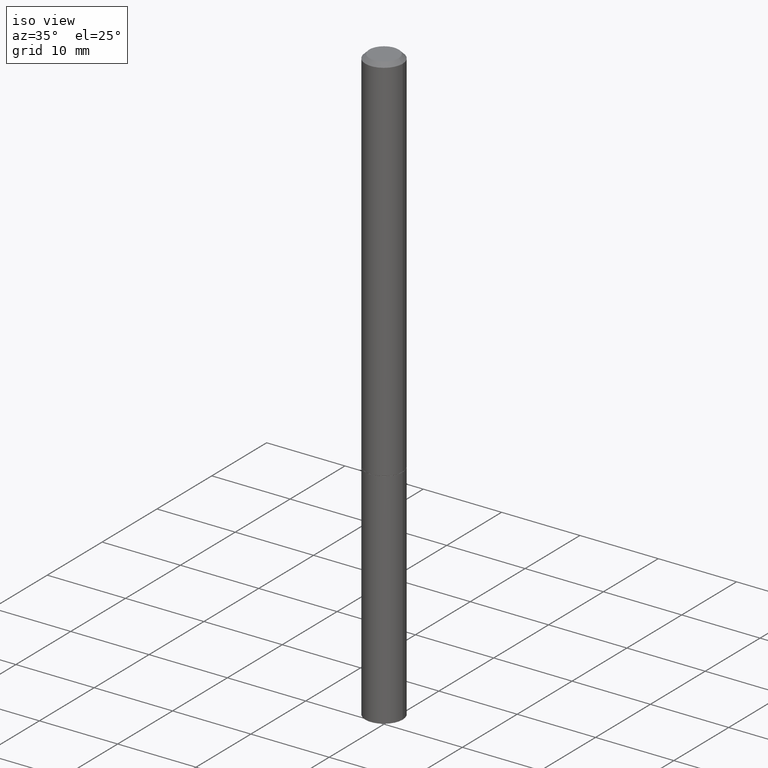
[diagram: clean part render]
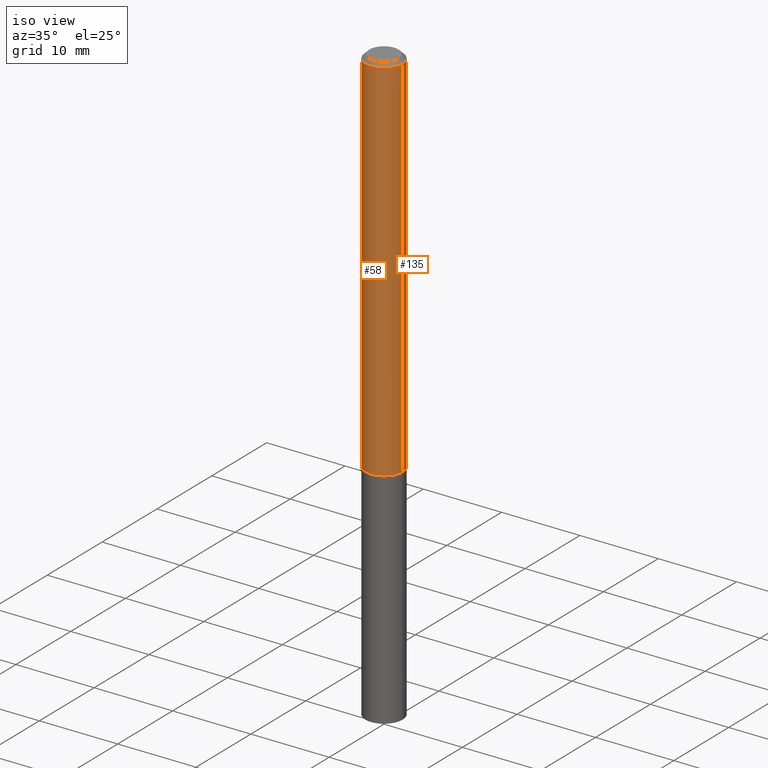
[diagram: same view with one multi-face feature highlighted, each face labeled with its STEP entity id]
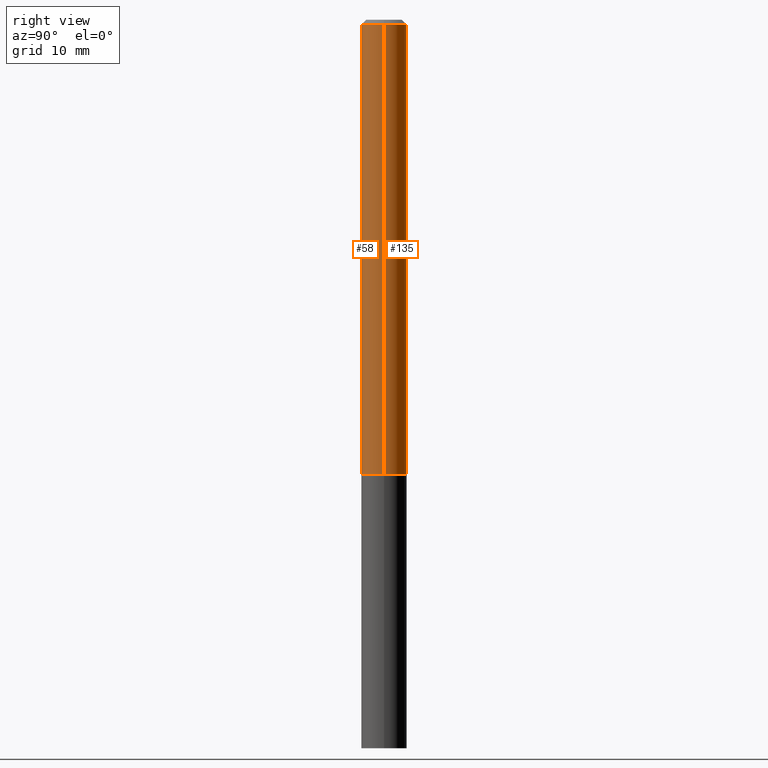
[diagram: same view with one multi-face feature highlighted, each face labeled with its STEP entity id]
A machine part, iso view. The highlighted faces form ONE feature: a constant-radius fillet chain: 2 tangent blend faces with common blend radius 2.3812 mm. The faces share edges in the B-rep.
A second angle (right view) of the same feature is appended — it is thin or edge-on in the first view.
Their STEP definitions:
[1] entity #135 (Cylinder):
#3 = CARTESIAN_POINT ( 'NONE',  ( 0.09374999999999988898, -6.546527510330866166E-16, 4.571415727308684201E-30 ) ) ;
#9 = VECTOR ( 'NONE', #233, 39.37007874015748143 ) ;
#13 = DIRECTION ( 'NONE',  ( 1.000000000000000000, -6.982962677686267499E-15, 0.000000000000000000 ) ) ;
#21 = VERTEX_POINT ( 'NONE', #204 ) ;
#44 = VERTEX_POINT ( 'NONE', #257 ) ;
#49 = CARTESIAN_POINT ( 'NONE',  ( 0.09374999999999976408, -7.130013140679424100E-16, -0.02000000000000001429 ) ) ;
#50 = VERTEX_POINT ( 'NONE', #49 ) ;
#59 = EDGE_LOOP ( 'NONE', ( #161, #101, #297, #284 ) ) ;
#62 = LINE ( 'NONE', #3, #9 ) ;
#66 = DIRECTION ( 'NONE',  ( 1.000000000000000000, -6.982962677686265133E-15, 4.876176775795935793E-29 ) ) ;
#68 = LINE ( 'NONE', #142, #149 ) ;
#71 = CIRCLE ( 'NONE', #323, 0.09374999999999976408 ) ;
#78 = EDGE_CURVE ( 'NONE', #177, #44, #238, .T. ) ;
#96 = CARTESIAN_POINT ( 'NONE',  ( 0.09375000000000001388, -7.197688780025142415E-15, -1.874000000000000110 ) ) ;
#101 = ORIENTED_EDGE ( 'NONE', *, *, #180, .T. ) ;
#128 = AXIS2_PLACEMENT_3D ( 'NONE', #199, #307, #66 ) ;
#135 = ADVANCED_FACE ( 'NONE', ( #144 ), #349, .T. ) ;
#142 = CARTESIAN_POINT ( 'NONE',  ( -0.09374999999999988898, 6.661338147750931354E-16, -4.611501647113968390E-30 ) ) ;
#144 = FACE_OUTER_BOUND ( 'NONE', #59, .T. ) ;
#149 = VECTOR ( 'NONE', #341, 39.37007874015748143 ) ;
#152 = DIRECTION ( 'NONE',  ( -2.445468806185136597E-29, 3.491481338843145583E-15, 1.000000000000000000 ) ) ;
#155 = CARTESIAN_POINT ( 'NONE',  ( 4.890937612370275786E-31, -6.982962677686296539E-17, -0.02000000000000001429 ) ) ;
#161 = ORIENTED_EDGE ( 'NONE', *, *, #78, .T. ) ;
#168 = EDGE_CURVE ( 'NONE', #50, #21, #71, .T. ) ;
#177 = VERTEX_POINT ( 'NONE', #96 ) ;
#180 = EDGE_CURVE ( 'NONE', #44, #21, #68, .T. ) ;
#183 = DIRECTION ( 'NONE',  ( 1.000000000000000000, -6.982962677686261189E-15, 0.000000000000000000 ) ) ;
#199 = CARTESIAN_POINT ( 'NONE',  ( 0.000000000000000000, 0.000000000000000000, 0.000000000000000000 ) ) ;
#204 = CARTESIAN_POINT ( 'NONE',  ( -0.09374999999999976408, 5.848231242562229240E-16, -0.02000000000000001429 ) ) ;
#233 = DIRECTION ( 'NONE',  ( -2.445468806185136877E-29, 3.491481338843145188E-15, 1.000000000000000000 ) ) ;
#238 = CIRCLE ( 'NONE', #318, 0.09375000000000001388 ) ;
#248 = CARTESIAN_POINT ( 'NONE',  ( 4.582808542790945516E-29, -6.543036028992054911E-15, -1.874000000000000110 ) ) ;
#257 = CARTESIAN_POINT ( 'NONE',  ( -0.09375000000000001388, -2.640299013109360447E-15, -1.874000000000000110 ) ) ;
#284 = ORIENTED_EDGE ( 'NONE', *, *, #286, .F. ) ;
#286 = EDGE_CURVE ( 'NONE', #177, #50, #62, .T. ) ;
#297 = ORIENTED_EDGE ( 'NONE', *, *, #168, .F. ) ;
#307 = DIRECTION ( 'NONE',  ( -2.445468806185136597E-29, 3.491481338843145583E-15, 1.000000000000000000 ) ) ;
#318 = AXIS2_PLACEMENT_3D ( 'NONE', #248, #326, #183 ) ;
#323 = AXIS2_PLACEMENT_3D ( 'NONE', #155, #152, #13 ) ;
#326 = DIRECTION ( 'NONE',  ( -2.445468806185136597E-29, 3.491481338843145583E-15, 1.000000000000000000 ) ) ;
#341 = DIRECTION ( 'NONE',  ( -2.445468806185136877E-29, 3.491481338843145188E-15, 1.000000000000000000 ) ) ;
#349 = CYLINDRICAL_SURFACE ( 'NONE', #128, 0.09374999999999988898 ) ;
[2] entity #58 (Cylinder):
#3 = CARTESIAN_POINT ( 'NONE',  ( 0.09374999999999988898, -6.546527510330866166E-16, 4.571415727308684201E-30 ) ) ;
#9 = VECTOR ( 'NONE', #233, 39.37007874015748143 ) ;
#21 = VERTEX_POINT ( 'NONE', #204 ) ;
#41 = CIRCLE ( 'NONE', #276, 0.09375000000000001388 ) ;
#42 = EDGE_CURVE ( 'NONE', #21, #50, #354, .T. ) ;
#44 = VERTEX_POINT ( 'NONE', #257 ) ;
#49 = CARTESIAN_POINT ( 'NONE',  ( 0.09374999999999976408, -7.130013140679424100E-16, -0.02000000000000001429 ) ) ;
#50 = VERTEX_POINT ( 'NONE', #49 ) ;
#58 = ADVANCED_FACE ( 'NONE', ( #225 ), #85, .T. ) ;
#62 = LINE ( 'NONE', #3, #9 ) ;
#68 = LINE ( 'NONE', #142, #149 ) ;
#85 = CYLINDRICAL_SURFACE ( 'NONE', #146, 0.09374999999999988898 ) ;
#89 = DIRECTION ( 'NONE',  ( -2.445468806185136597E-29, 3.491481338843145583E-15, 1.000000000000000000 ) ) ;
#93 = DIRECTION ( 'NONE',  ( 1.000000000000000000, -6.982962677686261189E-15, 0.000000000000000000 ) ) ;
#96 = CARTESIAN_POINT ( 'NONE',  ( 0.09375000000000001388, -7.197688780025142415E-15, -1.874000000000000110 ) ) ;
#133 = DIRECTION ( 'NONE',  ( -2.445468806185136597E-29, 3.491481338843145583E-15, 1.000000000000000000 ) ) ;
#142 = CARTESIAN_POINT ( 'NONE',  ( -0.09374999999999988898, 6.661338147750931354E-16, -4.611501647113968390E-30 ) ) ;
#146 = AXIS2_PLACEMENT_3D ( 'NONE', #296, #157, #278 ) ;
#149 = VECTOR ( 'NONE', #341, 39.37007874015748143 ) ;
#157 = DIRECTION ( 'NONE',  ( -2.445468806185136597E-29, 3.491481338843145583E-15, 1.000000000000000000 ) ) ;
#159 = ORIENTED_EDGE ( 'NONE', *, *, #335, .T. ) ;
#177 = VERTEX_POINT ( 'NONE', #96 ) ;
#180 = EDGE_CURVE ( 'NONE', #44, #21, #68, .T. ) ;
#182 = ORIENTED_EDGE ( 'NONE', *, *, #286, .T. ) ;
#204 = CARTESIAN_POINT ( 'NONE',  ( -0.09374999999999976408, 5.848231242562229240E-16, -0.02000000000000001429 ) ) ;
#222 = CARTESIAN_POINT ( 'NONE',  ( 4.890937612370275786E-31, -6.982962677686296539E-17, -0.02000000000000001429 ) ) ;
#225 = FACE_OUTER_BOUND ( 'NONE', #320, .T. ) ;
#233 = DIRECTION ( 'NONE',  ( -2.445468806185136877E-29, 3.491481338843145188E-15, 1.000000000000000000 ) ) ;
#257 = CARTESIAN_POINT ( 'NONE',  ( -0.09375000000000001388, -2.640299013109360447E-15, -1.874000000000000110 ) ) ;
#262 = CARTESIAN_POINT ( 'NONE',  ( 4.582808542790945516E-29, -6.543036028992054911E-15, -1.874000000000000110 ) ) ;
#276 = AXIS2_PLACEMENT_3D ( 'NONE', #262, #89, #93 ) ;
#278 = DIRECTION ( 'NONE',  ( 1.000000000000000000, -6.982962677686265133E-15, 4.876176775795935793E-29 ) ) ;
#286 = EDGE_CURVE ( 'NONE', #177, #50, #62, .T. ) ;
#291 = AXIS2_PLACEMENT_3D ( 'NONE', #222, #133, #331 ) ;
#296 = CARTESIAN_POINT ( 'NONE',  ( 0.000000000000000000, 0.000000000000000000, 0.000000000000000000 ) ) ;
#320 = EDGE_LOOP ( 'NONE', ( #332, #159, #182, #362 ) ) ;
#331 = DIRECTION ( 'NONE',  ( 1.000000000000000000, -6.982962677686267499E-15, 0.000000000000000000 ) ) ;
#332 = ORIENTED_EDGE ( 'NONE', *, *, #180, .F. ) ;
#335 = EDGE_CURVE ( 'NONE', #44, #177, #41, .T. ) ;
#341 = DIRECTION ( 'NONE',  ( -2.445468806185136877E-29, 3.491481338843145188E-15, 1.000000000000000000 ) ) ;
#354 = CIRCLE ( 'NONE', #291, 0.09374999999999976408 ) ;
#362 = ORIENTED_EDGE ( 'NONE', *, *, #42, .F. ) ;